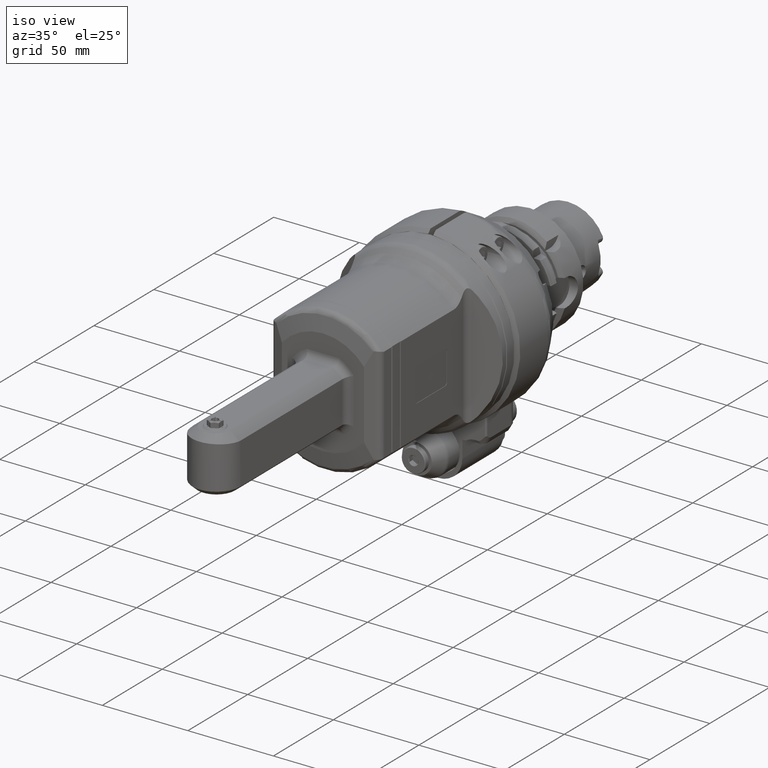
[diagram: clean part render]
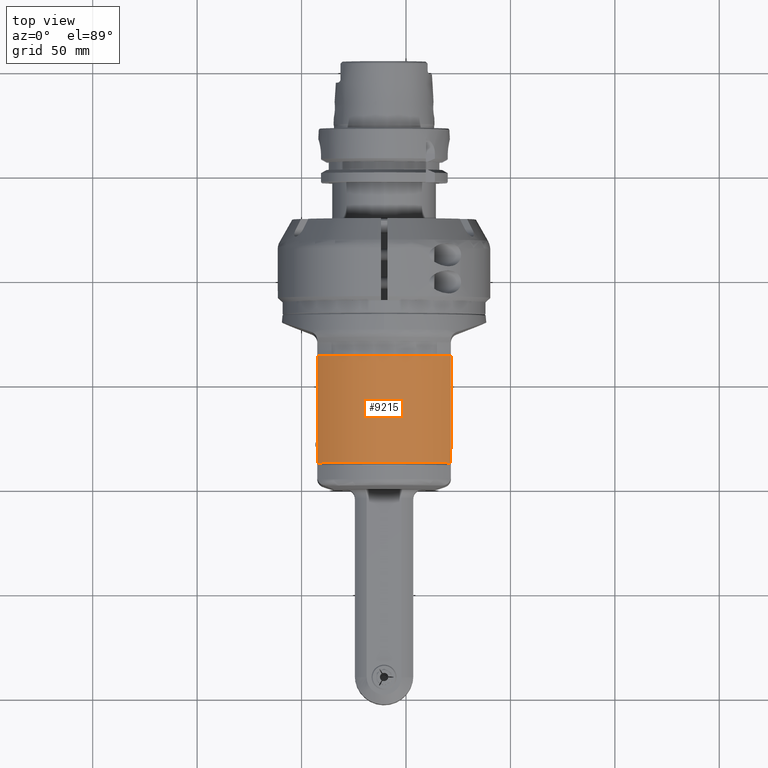
[diagram: tour spotlight — one face highlighted and labeled with its STEP entity id]
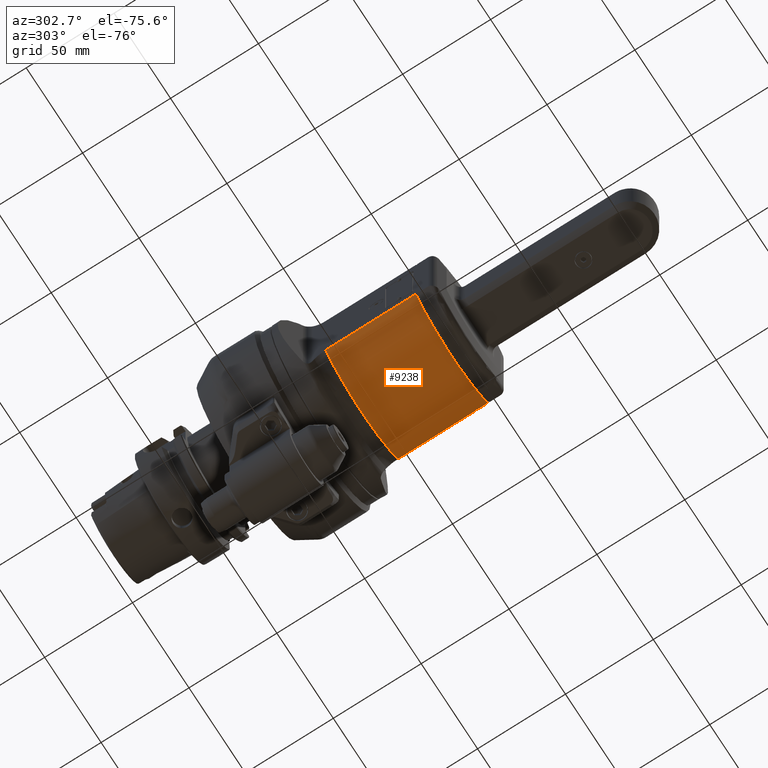
[diagram: tour spotlight — one face highlighted and labeled with its STEP entity id]
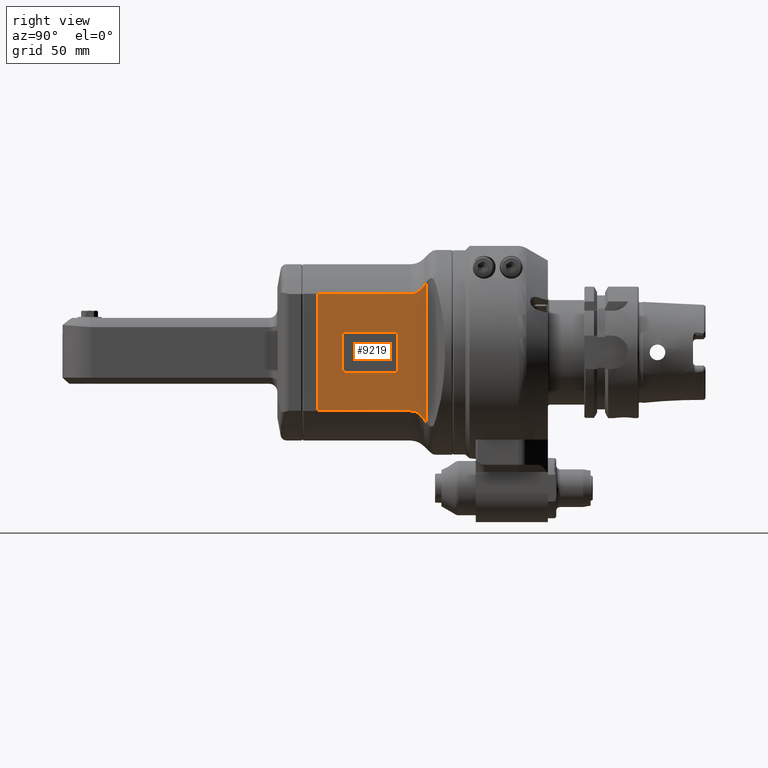
[diagram: tour spotlight — one face highlighted and labeled with its STEP entity id]
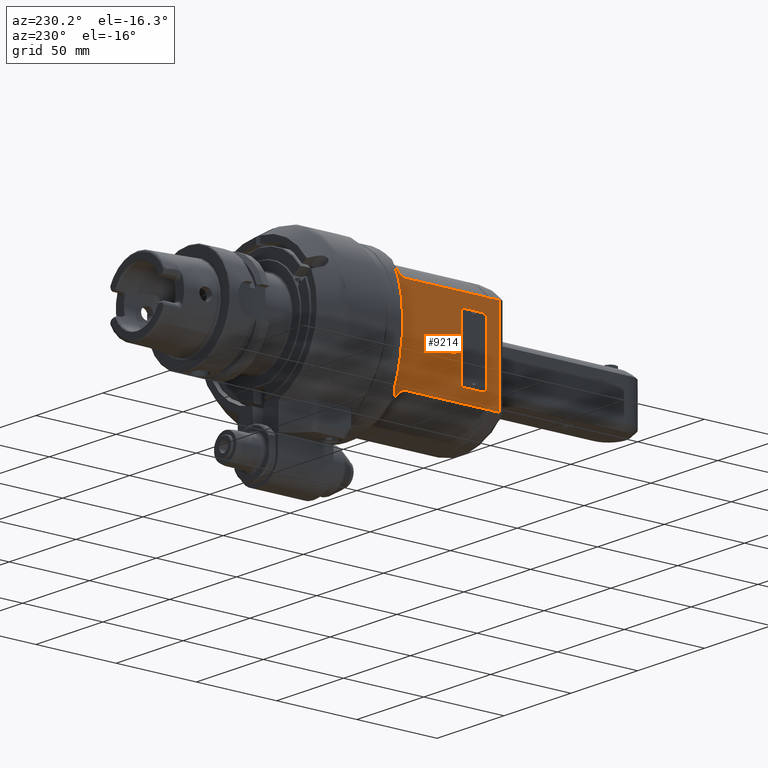
[diagram: tour spotlight — one face highlighted and labeled with its STEP entity id]
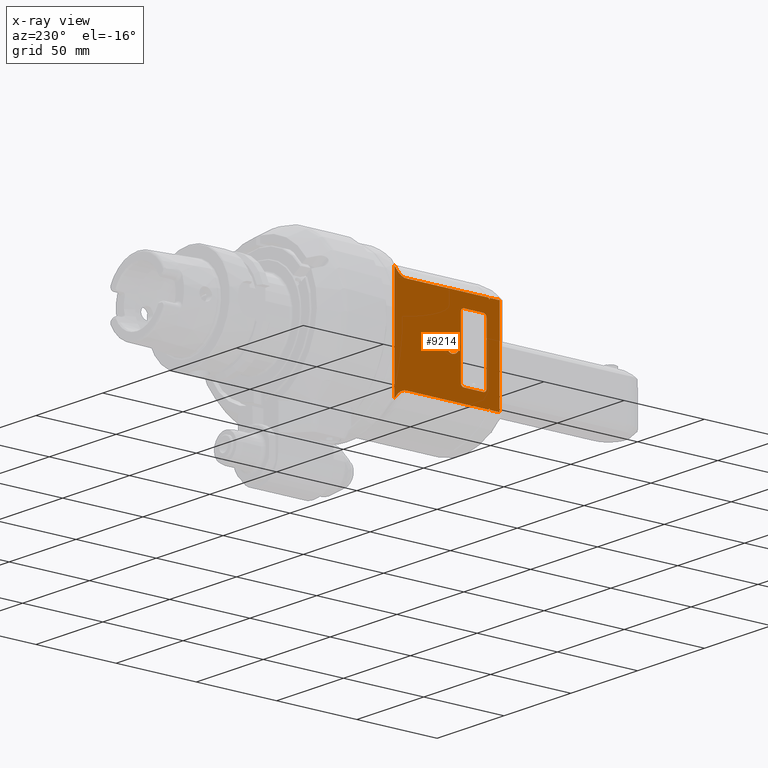
[diagram: x-ray of the same camera — body ghosted, this tour face saturated]
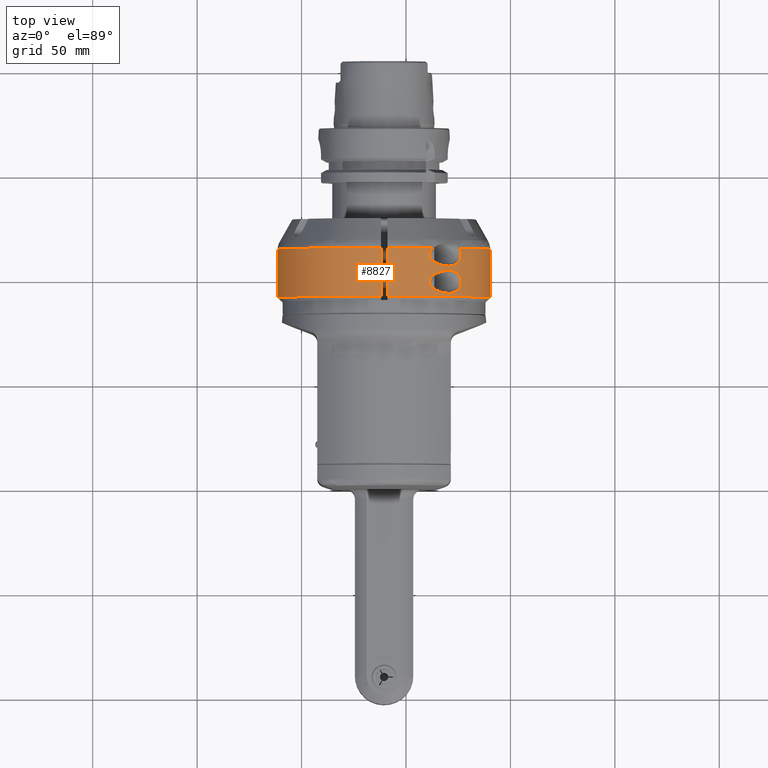
[diagram: tour spotlight — one face highlighted and labeled with its STEP entity id]
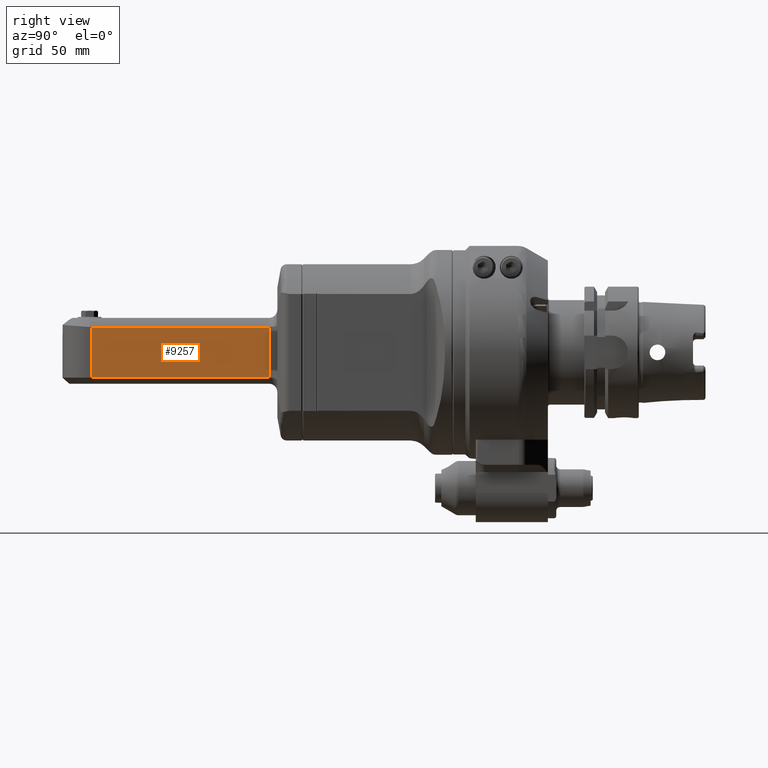
[diagram: tour spotlight — one face highlighted and labeled with its STEP entity id]
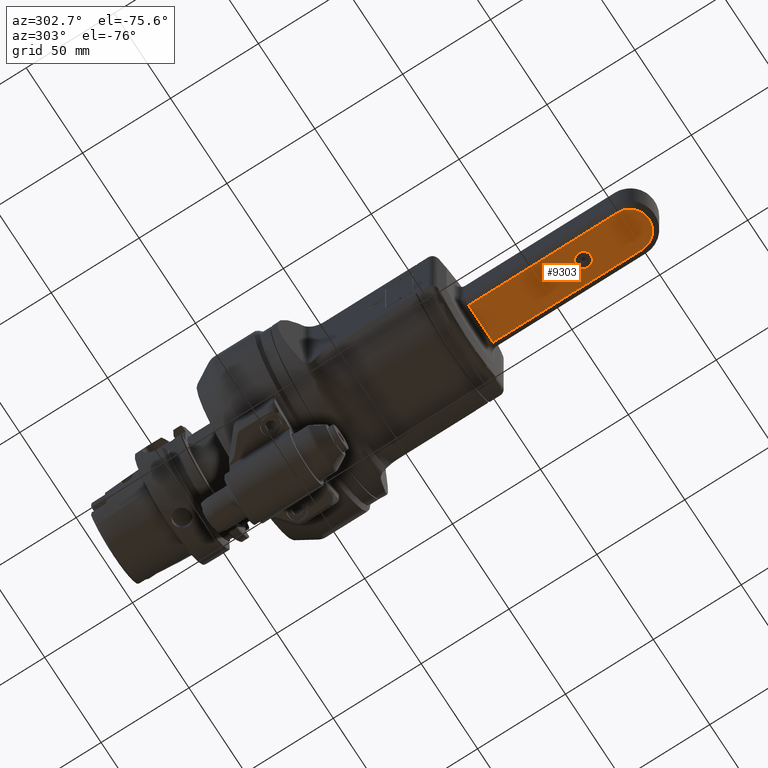
[diagram: tour spotlight — one face highlighted and labeled with its STEP entity id]
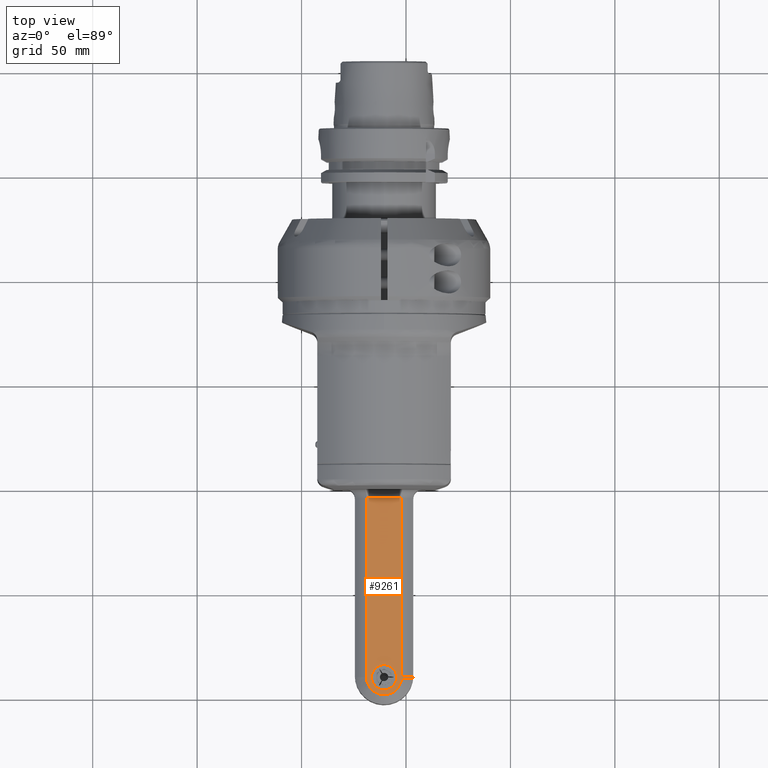
[diagram: tour spotlight — one face highlighted and labeled with its STEP entity id]
A machine part: a face-by-face anatomy tour. The part has 538 B-rep faces; the first image is the clean iso view, then the 8 largest visible faces are spotlighted one at a time (largest first), each with its STEP entity span.

Face 1 — top view, entity #9215. In plain terms, the highlighted cylindrical surface (partial cylindrical patch) has radius 42.5 mm, axis along (0, -1, -0).
Definition (entity closure, byte-faithful):
#1025=FACE_OUTER_BOUND('',#1614,.T.);
#1614=EDGE_LOOP('',(#7952,#7953,#7954,#7955,#7956,#7957,#7958));
#2086=CIRCLE('',#10130,51.9372405824031);
#2087=CIRCLE('',#10131,51.8413641374299);
#2088=CIRCLE('',#10132,42.5);
#2089=CIRCLE('',#10133,42.5);
#2820=LINE('',#46056,#3467);
#2830=LINE('',#46127,#3477);
#2831=LINE('',#46133,#3478);
#3467=VECTOR('',#12248,51.26935071414);
#3477=VECTOR('',#12276,6.3);
#3478=VECTOR('',#12281,44.46935112608);
#4316=VERTEX_POINT('',#46054);
#4317=VERTEX_POINT('',#46055);
#4338=VERTEX_POINT('',#46125);
#4339=VERTEX_POINT('',#46126);
#4340=VERTEX_POINT('',#46128);
#4341=VERTEX_POINT('',#46130);
#4342=VERTEX_POINT('',#46132);
#5560=EDGE_CURVE('',#4316,#4317,#2820,.T.);
#5582=EDGE_CURVE('',#4338,#4339,#2830,.T.);
#5583=EDGE_CURVE('',#4340,#4338,#2086,.T.);
#5584=EDGE_CURVE('',#4341,#4340,#2087,.T.);
#5585=EDGE_CURVE('',#4341,#4342,#2831,.T.);
#5586=EDGE_CURVE('',#4316,#4342,#2088,.T.);
#5587=EDGE_CURVE('',#4339,#4317,#2089,.T.);
#7952=ORIENTED_EDGE('',*,*,#5582,.F.);
#7953=ORIENTED_EDGE('',*,*,#5583,.F.);
#7954=ORIENTED_EDGE('',*,*,#5584,.F.);
#7955=ORIENTED_EDGE('',*,*,#5585,.T.);
#7956=ORIENTED_EDGE('',*,*,#5586,.F.);
#7957=ORIENTED_EDGE('',*,*,#5560,.T.);
#7958=ORIENTED_EDGE('',*,*,#5587,.F.);
#8780=CYLINDRICAL_SURFACE('',#10129,42.5);
#9215=ADVANCED_FACE('',(#1025),#8780,.T.);
#10129=AXIS2_PLACEMENT_3D('',#46124,#12274,#12275);
#10130=AXIS2_PLACEMENT_3D('',#46129,#12277,#12278);
#10131=AXIS2_PLACEMENT_3D('',#46131,#12279,#12280);
#10132=AXIS2_PLACEMENT_3D('',#46134,#12282,#12283);
#10133=AXIS2_PLACEMENT_3D('',#46135,#12284,#12285);
#12248=DIRECTION('',(1.,3.473462649786E-9,-3.035885710973E-9));
#12274=DIRECTION('center_axis',(1.,0.,0.));
#12275=DIRECTION('ref_axis',(0.,-1.,0.));
#12276=DIRECTION('',(1.,0.,0.));
#12277=DIRECTION('center_axis',(-0.707105409775689,-2.43192709413853E-6,
0.707108152590564));
#12278=DIRECTION('ref_axis',(0.442808617459183,-0.779644119090457,0.442804218443718));
#12279=DIRECTION('center_axis',(0.707103671027798,-5.49544179905175E-6,
0.707109891310263));
#12280=DIRECTION('ref_axis',(-0.438957611121359,-0.783990542192834,0.438947656777908));
#12281=DIRECTION('',(-1.,0.,0.));
#12282=DIRECTION('center_axis',(-1.,0.,0.));
#12283=DIRECTION('ref_axis',(0.,-0.658087824515174,-0.75294117647057));
#12284=DIRECTION('center_axis',(1.,0.,0.));
#12285=DIRECTION('ref_axis',(0.,-0.66077023316589,0.750588235294089));
#46054=CARTESIAN_POINT('',(17.23064887381,-27.96873254189,-32.));
#46055=CARTESIAN_POINT('',(68.4999999587753,-27.9687323282238,-32.0000002221198));
#46056=CARTESIAN_POINT('',(17.23064887381,-27.96873254189,-32.));
#46124=CARTESIAN_POINT('Origin',(22.25229287192,0.,0.));
#46125=CARTESIAN_POINT('',(62.2,-28.08273490955,31.9));
#46126=CARTESIAN_POINT('',(68.5,-28.08273490955,31.9));
#46127=CARTESIAN_POINT('',(62.2,-28.08273490955,31.9));
#46128=CARTESIAN_POINT('',(62.,-28.30830266901,31.7));
#46129=CARTESIAN_POINT('Origin',(39.2017423030611,12.4098292723073,8.90197077578513));
#46130=CARTESIAN_POINT('',(61.7,-27.96873254189,32.));
#46131=CARTESIAN_POINT('Origin',(84.7561613590387,12.334836509112,8.94435468770244));
#46132=CARTESIAN_POINT('',(17.23064887392,-27.96873254189,32.));
#46133=CARTESIAN_POINT('',(61.7,-27.96873254189,32.));
#46134=CARTESIAN_POINT('Origin',(17.23064887381,0.,0.));
#46135=CARTESIAN_POINT('Origin',(68.5,0.,0.));

Face 2 — auxiliary view, entity #9238. In plain terms, the highlighted cylindrical surface (partial cylindrical patch) has radius 42.5 mm, axis along (0, -1, -0).
Definition (entity closure, byte-faithful):
#1048=FACE_OUTER_BOUND('',#1639,.T.);
#1639=EDGE_LOOP('',(#8077,#8078,#8079,#8080,#8081,#8082,#8083));
#2090=CIRCLE('',#10136,51.9372405814551);
#2091=CIRCLE('',#10138,51.8413641367197);
#2112=CIRCLE('',#10181,42.5);
#2113=CIRCLE('',#10183,42.5);
#2822=LINE('',#46094,#3469);
#2833=LINE('',#46152,#3480);
#2837=LINE('',#46164,#3484);
#3469=VECTOR('',#12250,51.26935071414);
#3480=VECTOR('',#12289,6.3);
#3484=VECTOR('',#12303,44.46935112619);
#4322=VERTEX_POINT('',#46080);
#4323=VERTEX_POINT('',#46093);
#4345=VERTEX_POINT('',#46145);
#4346=VERTEX_POINT('',#46151);
#4347=VERTEX_POINT('',#46155);
#4348=VERTEX_POINT('',#46159);
#4349=VERTEX_POINT('',#46163);
#5566=EDGE_CURVE('',#4323,#4322,#2822,.T.);
#5591=EDGE_CURVE('',#4346,#4345,#2833,.T.);
#5593=EDGE_CURVE('',#4346,#4347,#2090,.T.);
#5595=EDGE_CURVE('',#4347,#4348,#2091,.T.);
#5597=EDGE_CURVE('',#4349,#4348,#2837,.T.);
#5649=EDGE_CURVE('',#4349,#4322,#2112,.T.);
#5650=EDGE_CURVE('',#4323,#4345,#2113,.T.);
#8077=ORIENTED_EDGE('',*,*,#5591,.T.);
#8078=ORIENTED_EDGE('',*,*,#5650,.F.);
#8079=ORIENTED_EDGE('',*,*,#5566,.T.);
#8080=ORIENTED_EDGE('',*,*,#5649,.F.);
#8081=ORIENTED_EDGE('',*,*,#5597,.T.);
#8082=ORIENTED_EDGE('',*,*,#5595,.F.);
#8083=ORIENTED_EDGE('',*,*,#5593,.F.);
#8786=CYLINDRICAL_SURFACE('',#10182,42.5);
#9238=ADVANCED_FACE('',(#1048),#8786,.T.);
#10136=AXIS2_PLACEMENT_3D('',#46156,#12293,#12294);
#10138=AXIS2_PLACEMENT_3D('',#46160,#12298,#12299);
#10181=AXIS2_PLACEMENT_3D('',#46375,#12399,#12400);
#10182=AXIS2_PLACEMENT_3D('',#46376,#12401,#12402);
#10183=AXIS2_PLACEMENT_3D('',#46377,#12403,#12404);
#12250=DIRECTION('',(-1.,3.473462719081E-9,3.035885849564E-9));
#12289=DIRECTION('',(1.,0.,0.));
#12293=DIRECTION('center_axis',(-0.707105409769089,2.43193874876257E-6,
0.707108152597164));
#12294=DIRECTION('ref_axis',(0.438957816045711,0.783987202337152,0.438953417009078));
#12298=DIRECTION('center_axis',(0.707103671021956,5.49545211017132E-6,0.707109891316105));
#12299=DIRECTION('ref_axis',(-0.444744495889397,0.77744036488246,0.444734541527318));
#12303=DIRECTION('',(1.,0.,0.));
#12399=DIRECTION('center_axis',(-1.,0.,0.));
#12400=DIRECTION('ref_axis',(0.,0.658087824515174,0.75294117647057));
#12401=DIRECTION('center_axis',(1.,0.,0.));
#12402=DIRECTION('ref_axis',(0.,1.,-3.61237605350076E-9));
#12403=DIRECTION('center_axis',(1.,0.,0.));
#12404=DIRECTION('ref_axis',(0.,0.658087824515174,-0.75294117647057));
#46080=CARTESIAN_POINT('',(17.23064887381,27.96873254189,-32.));
#46093=CARTESIAN_POINT('',(68.499999958775,27.9687323282249,-32.0000002221204));
#46094=CARTESIAN_POINT('',(68.49999958795,27.96873236381,-32.00000015565));
#46145=CARTESIAN_POINT('',(68.5,28.08273490955,31.9));
#46151=CARTESIAN_POINT('',(62.2,28.08273490955,31.9));
#46152=CARTESIAN_POINT('',(62.2,28.08273490955,31.9));
#46155=CARTESIAN_POINT('',(62.,28.30830266901,31.7));
#46156=CARTESIAN_POINT('Origin',(39.2017423029238,-12.4098292715587,8.90197077674531));
#46159=CARTESIAN_POINT('',(61.7,27.96873254189,32.));
#46160=CARTESIAN_POINT('Origin',(84.756161359204,-12.3348365085641,8.94435468850721));
#46163=CARTESIAN_POINT('',(17.23064887381,27.96873254189,32.));
#46164=CARTESIAN_POINT('',(17.23064887381,27.96873254189,32.));
#46375=CARTESIAN_POINT('Origin',(17.23064887381,0.,0.));
#46376=CARTESIAN_POINT('Origin',(22.25229287192,0.,0.));
#46377=CARTESIAN_POINT('Origin',(68.5,0.,0.));

Face 3 — right view, entity #9219. In plain terms, the highlighted planar face has unit normal (-1, -0, 0).
Definition (entity closure, byte-faithful):
#44=ELLIPSE('',#10140,174.936605021403,27.4118347394406);
#142=FACE_BOUND('',#1619,.T.);
#265=(
BOUNDED_CURVE()
B_SPLINE_CURVE(2,(#46179,#46180,#46181),.UNSPECIFIED.,.F.,.F.)
B_SPLINE_CURVE_WITH_KNOTS((3,3),(-0.358020175037099,-0.23112245109154),
 .UNSPECIFIED.)
CURVE()
GEOMETRIC_REPRESENTATION_ITEM()
RATIONAL_B_SPLINE_CURVE((1.04410882546459,1.03665734917675,1.02894673636987))
REPRESENTATION_ITEM('')
);
#479=PLANE('',#10139);
#1029=FACE_OUTER_BOUND('',#1618,.T.);
#1618=EDGE_LOOP('',(#7973,#7974,#7975,#7976,#7977,#7978,#7979,#7980));
#1619=EDGE_LOOP('',(#7981,#7982,#7983,#7984,#7985,#7986,#7987,#7988));
#2092=CIRCLE('',#10141,1.5);
#2093=CIRCLE('',#10142,1.5);
#2094=CIRCLE('',#10143,1.5);
#2095=CIRCLE('',#10144,1.5);
#2318=B_SPLINE_CURVE_WITH_KNOTS('',3,(#46166,#46167,#46168,#46169,#46170,
#46171,#46172,#46173,#46174,#46175,#46176,#46177),.UNSPECIFIED.,.F.,.F.,
(4,2,2,2,2,4),(3.0712756261057,3.21936466197179,3.36745369783788,3.55263373942636,
3.73781378101483,3.80386724461525),.UNSPECIFIED.);
#2319=B_SPLINE_CURVE_WITH_KNOTS('',3,(#46186,#46187,#46188,#46189,#46190,
#46191,#46192,#46193,#46194,#46195,#46196,#46197),.UNSPECIFIED.,.F.,.F.,
(4,2,2,2,2,4),(2.33868378422293,2.40473747119757,2.58991751278882,2.77509755438008,
2.92318659024839,3.0712756261167),.UNSPECIFIED.);
#2831=LINE('',#46133,#3478);
#2836=LINE('',#46161,#3483);
#2837=LINE('',#46164,#3484);
#2838=LINE('',#46183,#3485);
#2839=LINE('',#46200,#3486);
#2840=LINE('',#46204,#3487);
#2841=LINE('',#46208,#3488);
#2842=LINE('',#46212,#3489);
#3478=VECTOR('',#12281,44.46935112608);
#3483=VECTOR('',#12300,55.93746508379);
#3484=VECTOR('',#12303,44.46935112619);
#3485=VECTOR('',#12304,66.84160300858);
#3486=VECTOR('',#12307,16.5);
#3487=VECTOR('',#12310,23.5);
#3488=VECTOR('',#12313,16.5);
#3489=VECTOR('',#12316,23.5);
#4341=VERTEX_POINT('',#46130);
#4342=VERTEX_POINT('',#46132);
#4348=VERTEX_POINT('',#46159);
#4349=VERTEX_POINT('',#46163);
#4350=VERTEX_POINT('',#46165);
#4351=VERTEX_POINT('',#46178);
#4352=VERTEX_POINT('',#46182);
#4353=VERTEX_POINT('',#46184);
#4354=VERTEX_POINT('',#46198);
#4355=VERTEX_POINT('',#46199);
#4356=VERTEX_POINT('',#46201);
#4357=VERTEX_POINT('',#46203);
#4358=VERTEX_POINT('',#46205);
#4359=VERTEX_POINT('',#46207);
#4360=VERTEX_POINT('',#46209);
#4361=VERTEX_POINT('',#46211);
#5585=EDGE_CURVE('',#4341,#4342,#2831,.T.);
#5596=EDGE_CURVE('',#4341,#4348,#2836,.T.);
#5597=EDGE_CURVE('',#4349,#4348,#2837,.T.);
#5598=EDGE_CURVE('',#4349,#4350,#2318,.T.);
#5599=EDGE_CURVE('',#4350,#4351,#265,.T.);
#5600=EDGE_CURVE('',#4352,#4351,#2838,.T.);
#5601=EDGE_CURVE('',#4353,#4352,#44,.T.);
#5602=EDGE_CURVE('',#4353,#4342,#2319,.T.);
#5603=EDGE_CURVE('',#4354,#4355,#2839,.T.);
#5604=EDGE_CURVE('',#4354,#4356,#2092,.T.);
#5605=EDGE_CURVE('',#4357,#4356,#2840,.T.);
#5606=EDGE_CURVE('',#4357,#4358,#2093,.T.);
#5607=EDGE_CURVE('',#4359,#4358,#2841,.T.);
#5608=EDGE_CURVE('',#4359,#4360,#2094,.T.);
#5609=EDGE_CURVE('',#4361,#4360,#2842,.T.);
#5610=EDGE_CURVE('',#4361,#4355,#2095,.T.);
#7973=ORIENTED_EDGE('',*,*,#5585,.F.);
#7974=ORIENTED_EDGE('',*,*,#5596,.T.);
#7975=ORIENTED_EDGE('',*,*,#5597,.F.);
#7976=ORIENTED_EDGE('',*,*,#5598,.T.);
#7977=ORIENTED_EDGE('',*,*,#5599,.T.);
#7978=ORIENTED_EDGE('',*,*,#5600,.F.);
#7979=ORIENTED_EDGE('',*,*,#5601,.F.);
#7980=ORIENTED_EDGE('',*,*,#5602,.T.);
#7981=ORIENTED_EDGE('',*,*,#5603,.F.);
#7982=ORIENTED_EDGE('',*,*,#5604,.T.);
#7983=ORIENTED_EDGE('',*,*,#5605,.F.);
#7984=ORIENTED_EDGE('',*,*,#5606,.T.);
#7985=ORIENTED_EDGE('',*,*,#5607,.F.);
#7986=ORIENTED_EDGE('',*,*,#5608,.T.);
#7987=ORIENTED_EDGE('',*,*,#5609,.F.);
#7988=ORIENTED_EDGE('',*,*,#5610,.T.);
#9219=ADVANCED_FACE('',(#1029,#142),#479,.F.);
#10139=AXIS2_PLACEMENT_3D('',#46162,#12301,#12302);
#10140=AXIS2_PLACEMENT_3D('',#46185,#12305,#12306);
#10141=AXIS2_PLACEMENT_3D('',#46202,#12308,#12309);
#10142=AXIS2_PLACEMENT_3D('',#46206,#12311,#12312);
#10143=AXIS2_PLACEMENT_3D('',#46210,#12314,#12315);
#10144=AXIS2_PLACEMENT_3D('',#46213,#12317,#12318);
#12281=DIRECTION('',(-1.,0.,0.));
#12300=DIRECTION('',(0.,1.,0.));
#12301=DIRECTION('center_axis',(0.,0.,-1.));
#12302=DIRECTION('ref_axis',(1.,0.,0.));
#12303=DIRECTION('',(1.,0.,0.));
#12304=DIRECTION('',(-1.533572553029E-12,1.,3.374146633328E-12));
#12305=DIRECTION('center_axis',(0.000114920305094293,-8.4270334005718E-5,
-0.999999989845917));
#12306=DIRECTION('ref_axis',(0.765749355041379,0.643139117229777,3.38026016292521E-5));
#12307=DIRECTION('',(0.,1.,0.));
#12308=DIRECTION('center_axis',(0.,0.,-1.));
#12309=DIRECTION('ref_axis',(1.,-1.657933050107E-14,0.));
#12310=DIRECTION('',(1.,0.,0.));
#12311=DIRECTION('center_axis',(0.,0.,-1.));
#12312=DIRECTION('ref_axis',(0.,-1.,0.));
#12313=DIRECTION('',(0.,-1.,0.));
#12314=DIRECTION('center_axis',(0.,0.,-1.));
#12315=DIRECTION('ref_axis',(-1.,0.,0.));
#12316=DIRECTION('',(-1.,0.,0.));
#12317=DIRECTION('center_axis',(0.,0.,-1.));
#12318=DIRECTION('ref_axis',(0.,1.,0.));
#46130=CARTESIAN_POINT('',(61.7,-27.96873254189,32.));
#46132=CARTESIAN_POINT('',(17.23064887392,-27.96873254189,32.));
#46133=CARTESIAN_POINT('',(61.7,-27.96873254189,32.));
#46159=CARTESIAN_POINT('',(61.7,27.96873254189,32.));
#46161=CARTESIAN_POINT('',(61.7,-27.96873254189,32.));
#46162=CARTESIAN_POINT('Origin',(6.930692048084,-58.8000024,32.));
#46163=CARTESIAN_POINT('',(17.23064887381,27.96873254189,32.));
#46164=CARTESIAN_POINT('',(17.23064887381,27.96873254189,32.));
#46165=CARTESIAN_POINT('',(10.8689325306567,31.8285948719383,32.0000000967632));
#46166=CARTESIAN_POINT('Ctrl Pts',(17.23064887381,27.968732541894,32.));
#46167=CARTESIAN_POINT('Ctrl Pts',(16.7370187542564,27.968732541894,32.));
#46168=CARTESIAN_POINT('Ctrl Pts',(16.2014291398538,28.0351278054541,32.));
#46169=CARTESIAN_POINT('Ctrl Pts',(15.1655978291161,28.3086723916246,32.));
#46170=CARTESIAN_POINT('Ctrl Pts',(14.6650966137489,28.5148380476213,32.));
#46171=CARTESIAN_POINT('Ctrl Pts',(13.6833023503026,29.0346187724486,32.));
#46172=CARTESIAN_POINT('Ctrl Pts',(13.1290095618823,29.419596467791,32.));
#46173=CARTESIAN_POINT('Ctrl Pts',(12.1164800137392,30.3041616581605,32.));
#46174=CARTESIAN_POINT('Ctrl Pts',(11.6572714347099,30.8026361299901,32.));
#46175=CARTESIAN_POINT('Ctrl Pts',(11.1373983141086,31.4591771382071,32.));
#46176=CARTESIAN_POINT('Ctrl Pts',(11.0017952306107,31.6403249619752,32.));
#46177=CARTESIAN_POINT('Ctrl Pts',(10.8689325764876,31.8285949042813,32.));
#46178=CARTESIAN_POINT('',(9.73152223550858,33.420805285391,32.0000001608818));
#46179=CARTESIAN_POINT('Ctrl Pts',(10.8689325764839,31.8285949042871,32.));
#46180=CARTESIAN_POINT('Ctrl Pts',(10.3141049488347,32.614800585509,32.));
#46181=CARTESIAN_POINT('Ctrl Pts',(9.73152233076506,33.4208053542428,32.));
#46182=CARTESIAN_POINT('',(9.7315230167701,-33.4208029933432,32.0000006440383));
#46183=CARTESIAN_POINT('',(9.731521981753,-33.42080150517,32.00000048242));
#46184=CARTESIAN_POINT('',(10.8689317072229,-31.8285971521966,31.9999989892967));
#46185=CARTESIAN_POINT('Origin',(-113.280725385183,-117.803473850044,31.9929758003627));
#46186=CARTESIAN_POINT('Ctrl Pts',(10.8689312285262,-31.8285968143791,32.));
#46187=CARTESIAN_POINT('Ctrl Pts',(11.0017943136203,-31.6403261873273,32.));
#46188=CARTESIAN_POINT('Ctrl Pts',(11.1373978518862,-31.4591777219417,32.));
#46189=CARTESIAN_POINT('Ctrl Pts',(11.6572714347099,-30.8026361299901,32.));
#46190=CARTESIAN_POINT('Ctrl Pts',(12.1164800137392,-30.3041616581605,32.));
#46191=CARTESIAN_POINT('Ctrl Pts',(13.1290095618823,-29.419596467791,32.));
#46192=CARTESIAN_POINT('Ctrl Pts',(13.6833023503026,-29.0346187724486,32.));
#46193=CARTESIAN_POINT('Ctrl Pts',(14.6650966137489,-28.5148380476213,32.));
#46194=CARTESIAN_POINT('Ctrl Pts',(15.1655978291161,-28.3086723916246,32.));
#46195=CARTESIAN_POINT('Ctrl Pts',(16.2014291398538,-28.0351278054541,32.));
#46196=CARTESIAN_POINT('Ctrl Pts',(16.7370187542564,-27.968732541894,32.));
#46197=CARTESIAN_POINT('Ctrl Pts',(17.23064887381,-27.968732541894,32.));
#46198=CARTESIAN_POINT('',(49.7,-8.25,32.));
#46199=CARTESIAN_POINT('',(49.7,8.25,32.));
#46200=CARTESIAN_POINT('',(49.7,-8.25,32.));
#46201=CARTESIAN_POINT('',(48.2,-9.75,32.));
#46202=CARTESIAN_POINT('Origin',(48.2,-8.25,32.));
#46203=CARTESIAN_POINT('',(24.7,-9.75,32.));
#46204=CARTESIAN_POINT('',(24.7,-9.75,32.));
#46205=CARTESIAN_POINT('',(23.2,-8.25,32.));
#46206=CARTESIAN_POINT('Origin',(24.7,-8.25,32.));
#46207=CARTESIAN_POINT('',(23.2,8.25,32.));
#46208=CARTESIAN_POINT('',(23.2,8.25,32.));
#46209=CARTESIAN_POINT('',(24.7,9.75,32.));
#46210=CARTESIAN_POINT('Origin',(24.7,8.25,32.));
#46211=CARTESIAN_POINT('',(48.2,9.75,32.));
#46212=CARTESIAN_POINT('',(48.2,9.75,32.));
#46213=CARTESIAN_POINT('Origin',(48.2,8.25,32.));

Face 4 — auxiliary view, entity #9214. An x-ray twin of the same camera follows (body ghosted, this face saturated) — the face is partly hidden behind the body. In plain terms, the highlighted planar face has unit normal (1, 0, -0).
Definition (entity closure, byte-faithful):
#140=FACE_BOUND('',#1612,.T.);
#141=FACE_BOUND('',#1613,.T.);
#263=(
BOUNDED_CURVE()
B_SPLINE_CURVE(2,(#46071,#46072,#46073),.UNSPECIFIED.,.F.,.F.)
B_SPLINE_CURVE_WITH_KNOTS((3,3),(-0.358020174879983,-0.231122492491421),
 .UNSPECIFIED.)
CURVE()
GEOMETRIC_REPRESENTATION_ITEM()
RATIONAL_B_SPLINE_CURVE((1.04410882544479,1.03665735159712,1.02894674140012))
REPRESENTATION_ITEM('')
);
#264=(
BOUNDED_CURVE()
B_SPLINE_CURVE(2,(#46077,#46078,#46079),.UNSPECIFIED.,.F.,.F.)
B_SPLINE_CURVE_WITH_KNOTS((3,3),(-7.78281156866565,-7.65591384490931),
 .UNSPECIFIED.)
CURVE()
GEOMETRIC_REPRESENTATION_ITEM()
RATIONAL_B_SPLINE_CURVE((1.02894673636928,1.03665734916468,1.0441088254418))
REPRESENTATION_ITEM('')
);
#475=PLANE('',#10120);
#1024=FACE_OUTER_BOUND('',#1611,.T.);
#1611=EDGE_LOOP('',(#7929,#7930,#7931,#7932,#7933,#7934,#7935,#7936,#7937,
#7938,#7939,#7940,#7941,#7942));
#1612=EDGE_LOOP('',(#7943));
#1613=EDGE_LOOP('',(#7944,#7945,#7946,#7947,#7948,#7949,#7950,#7951));
#2077=CIRCLE('',#10119,4.25);
#2078=CIRCLE('',#10121,125.457615877883);
#2079=CIRCLE('',#10122,125.457615683286);
#2080=CIRCLE('',#10123,125.457615844418);
#2081=CIRCLE('',#10124,125.457615773341);
#2082=CIRCLE('',#10125,2.);
#2083=CIRCLE('',#10126,2.);
#2084=CIRCLE('',#10127,2.);
#2085=CIRCLE('',#10128,2.);
#2314=B_SPLINE_CURVE_WITH_KNOTS('',3,(#46058,#46059,#46060,#46061,#46062,
#46063,#46064,#46065,#46066,#46067,#46068,#46069),.UNSPECIFIED.,.F.,.F.,
(4,2,2,2,2,4),(-3.80386724463457,-3.73781378101483,-3.55263373942636,-3.36745369783788,
-3.21936466197179,-3.0712756261057),.UNSPECIFIED.);
#2315=B_SPLINE_CURVE_WITH_KNOTS('',3,(#46081,#46082,#46083,#46084,#46085,
#46086,#46087,#46088,#46089,#46090,#46091,#46092),.UNSPECIFIED.,.F.,.F.,
(4,2,2,2,2,4),(-3.0712756261057,-2.92318659023961,-2.77509755437353,-2.58991751278505,
-2.40473747119658,-2.33868400731691),.UNSPECIFIED.);
#2820=LINE('',#46056,#3467);
#2821=LINE('',#46075,#3468);
#2822=LINE('',#46094,#3469);
#2823=LINE('',#46100,#3470);
#2824=LINE('',#46102,#3471);
#2825=LINE('',#46104,#3472);
#2826=LINE('',#46110,#3473);
#2827=LINE('',#46114,#3474);
#2828=LINE('',#46118,#3475);
#2829=LINE('',#46122,#3476);
#3467=VECTOR('',#12248,51.26935071414);
#3468=VECTOR('',#12249,66.8416030065);
#3469=VECTOR('',#12250,51.26935071414);
#3470=VECTOR('',#12255,5.79108067422501);
#3471=VECTOR('',#12256,55.93746508379);
#3472=VECTOR('',#12257,5.79108067422501);
#3473=VECTOR('',#12262,35.5);
#3474=VECTOR('',#12265,12.);
#3475=VECTOR('',#12268,35.5);
#3476=VECTOR('',#12271,12.);
#4315=VERTEX_POINT('',#46050);
#4316=VERTEX_POINT('',#46054);
#4317=VERTEX_POINT('',#46055);
#4318=VERTEX_POINT('',#46057);
#4319=VERTEX_POINT('',#46070);
#4320=VERTEX_POINT('',#46074);
#4321=VERTEX_POINT('',#46076);
#4322=VERTEX_POINT('',#46080);
#4323=VERTEX_POINT('',#46093);
#4324=VERTEX_POINT('',#46095);
#4325=VERTEX_POINT('',#46097);
#4326=VERTEX_POINT('',#46099);
#4327=VERTEX_POINT('',#46101);
#4328=VERTEX_POINT('',#46103);
#4329=VERTEX_POINT('',#46105);
#4330=VERTEX_POINT('',#46108);
#4331=VERTEX_POINT('',#46109);
#4332=VERTEX_POINT('',#46111);
#4333=VERTEX_POINT('',#46113);
#4334=VERTEX_POINT('',#46115);
#4335=VERTEX_POINT('',#46117);
#4336=VERTEX_POINT('',#46119);
#4337=VERTEX_POINT('',#46121);
#5559=EDGE_CURVE('',#4315,#4315,#2077,.T.);
#5560=EDGE_CURVE('',#4316,#4317,#2820,.T.);
#5561=EDGE_CURVE('',#4318,#4316,#2314,.T.);
#5562=EDGE_CURVE('',#4318,#4319,#263,.T.);
#5563=EDGE_CURVE('',#4320,#4319,#2821,.T.);
#5564=EDGE_CURVE('',#4320,#4321,#264,.T.);
#5565=EDGE_CURVE('',#4322,#4321,#2315,.T.);
#5566=EDGE_CURVE('',#4323,#4322,#2822,.T.);
#5567=EDGE_CURVE('',#4323,#4324,#2078,.T.);
#5568=EDGE_CURVE('',#4324,#4325,#2079,.T.);
#5569=EDGE_CURVE('',#4326,#4325,#2823,.T.);
#5570=EDGE_CURVE('',#4327,#4326,#2824,.T.);
#5571=EDGE_CURVE('',#4328,#4327,#2825,.T.);
#5572=EDGE_CURVE('',#4328,#4329,#2080,.T.);
#5573=EDGE_CURVE('',#4329,#4317,#2081,.T.);
#5574=EDGE_CURVE('',#4330,#4331,#2826,.T.);
#5575=EDGE_CURVE('',#4331,#4332,#2082,.T.);
#5576=EDGE_CURVE('',#4332,#4333,#2827,.T.);
#5577=EDGE_CURVE('',#4333,#4334,#2083,.T.);
#5578=EDGE_CURVE('',#4334,#4335,#2828,.T.);
#5579=EDGE_CURVE('',#4335,#4336,#2084,.T.);
#5580=EDGE_CURVE('',#4336,#4337,#2829,.T.);
#5581=EDGE_CURVE('',#4337,#4330,#2085,.T.);
#7929=ORIENTED_EDGE('',*,*,#5560,.F.);
#7930=ORIENTED_EDGE('',*,*,#5561,.F.);
#7931=ORIENTED_EDGE('',*,*,#5562,.T.);
#7932=ORIENTED_EDGE('',*,*,#5563,.F.);
#7933=ORIENTED_EDGE('',*,*,#5564,.T.);
#7934=ORIENTED_EDGE('',*,*,#5565,.F.);
#7935=ORIENTED_EDGE('',*,*,#5566,.F.);
#7936=ORIENTED_EDGE('',*,*,#5567,.T.);
#7937=ORIENTED_EDGE('',*,*,#5568,.T.);
#7938=ORIENTED_EDGE('',*,*,#5569,.F.);
#7939=ORIENTED_EDGE('',*,*,#5570,.F.);
#7940=ORIENTED_EDGE('',*,*,#5571,.F.);
#7941=ORIENTED_EDGE('',*,*,#5572,.T.);
#7942=ORIENTED_EDGE('',*,*,#5573,.T.);
#7943=ORIENTED_EDGE('',*,*,#5559,.T.);
#7944=ORIENTED_EDGE('',*,*,#5574,.T.);
#7945=ORIENTED_EDGE('',*,*,#5575,.T.);
#7946=ORIENTED_EDGE('',*,*,#5576,.T.);
#7947=ORIENTED_EDGE('',*,*,#5577,.T.);
#7948=ORIENTED_EDGE('',*,*,#5578,.T.);
#7949=ORIENTED_EDGE('',*,*,#5579,.T.);
#7950=ORIENTED_EDGE('',*,*,#5580,.T.);
#7951=ORIENTED_EDGE('',*,*,#5581,.T.);
#9214=ADVANCED_FACE('',(#1024,#140,#141),#475,.F.);
#10119=AXIS2_PLACEMENT_3D('',#46052,#12244,#12245);
#10120=AXIS2_PLACEMENT_3D('',#46053,#12246,#12247);
#10121=AXIS2_PLACEMENT_3D('',#46096,#12251,#12252);
#10122=AXIS2_PLACEMENT_3D('',#46098,#12253,#12254);
#10123=AXIS2_PLACEMENT_3D('',#46106,#12258,#12259);
#10124=AXIS2_PLACEMENT_3D('',#46107,#12260,#12261);
#10125=AXIS2_PLACEMENT_3D('',#46112,#12263,#12264);
#10126=AXIS2_PLACEMENT_3D('',#46116,#12266,#12267);
#10127=AXIS2_PLACEMENT_3D('',#46120,#12269,#12270);
#10128=AXIS2_PLACEMENT_3D('',#46123,#12272,#12273);
#12244=DIRECTION('center_axis',(0.,0.,1.));
#12245=DIRECTION('ref_axis',(-1.,0.,0.));
#12246=DIRECTION('center_axis',(0.,0.,1.));
#12247=DIRECTION('ref_axis',(1.,0.,0.));
#12248=DIRECTION('',(1.,3.473462649786E-9,-3.035885710973E-9));
#12249=DIRECTION('',(4.41420997931E-13,-1.,1.593473993735E-13));
#12250=DIRECTION('',(-1.,3.473462719081E-9,3.035885849564E-9));
#12251=DIRECTION('center_axis',(-0.000101433758070783,-6.72495559794746E-5,
-0.999999992594345));
#12252=DIRECTION('ref_axis',(0.839311775708216,0.543650373261988,-0.000121694794714337));
#12253=DIRECTION('center_axis',(0.000101431716550913,-6.72482230361314E-5,
-0.999999992594642));
#12254=DIRECTION('ref_axis',(-0.835326366002053,0.549754351916615,-0.000121698591357801));
#12255=DIRECTION('',(-0.999999999999999,-3.075111336812E-8,-2.687717509043E-8));
#12256=DIRECTION('',(0.,1.,0.));
#12257=DIRECTION('',(0.999999999999999,-3.075112502425E-8,2.687718367915E-8));
#12258=DIRECTION('center_axis',(0.000101433409963309,6.72493286931444E-5,
-0.999999992594396));
#12259=DIRECTION('ref_axis',(-0.839311775708652,-0.543650373261407,-0.000121694378979329));
#12260=DIRECTION('center_axis',(-0.000101432662574599,6.72488407139107E-5,
-0.999999992594504));
#12261=DIRECTION('ref_axis',(0.835326366003244,-0.549754351914555,-0.000121699721167393));
#12262=DIRECTION('',(0.,-1.,0.));
#12263=DIRECTION('center_axis',(0.,0.,1.));
#12264=DIRECTION('ref_axis',(-1.,0.,0.));
#12265=DIRECTION('',(1.,0.,0.));
#12266=DIRECTION('center_axis',(0.,0.,1.));
#12267=DIRECTION('ref_axis',(0.,-1.,0.));
#12268=DIRECTION('',(0.,1.,0.));
#12269=DIRECTION('center_axis',(0.,0.,1.));
#12270=DIRECTION('ref_axis',(1.,0.,0.));
#12271=DIRECTION('',(-1.,0.,0.));
#12272=DIRECTION('center_axis',(0.,0.,1.));
#12273=DIRECTION('ref_axis',(0.,1.,0.));
#46050=CARTESIAN_POINT('',(50.25,0.,-32.));
#46052=CARTESIAN_POINT('Origin',(46.,0.,-32.));
#46053=CARTESIAN_POINT('Origin',(18.93069204808,58.8000024,-32.));
#46054=CARTESIAN_POINT('',(17.23064887381,-27.96873254189,-32.));
#46055=CARTESIAN_POINT('',(68.4999999587753,-27.9687323282238,-32.0000002221198));
#46056=CARTESIAN_POINT('',(17.23064887381,-27.96873254189,-32.));
#46057=CARTESIAN_POINT('',(10.8689325305619,-31.8285948721189,-32.0000000967171));
#46058=CARTESIAN_POINT('Ctrl Pts',(10.8689325763711,-31.8285949044465,-32.));
#46059=CARTESIAN_POINT('Ctrl Pts',(11.0017952305313,-31.6403249620812,-32.));
#46060=CARTESIAN_POINT('Ctrl Pts',(11.1373983140686,-31.4591771382575,-32.));
#46061=CARTESIAN_POINT('Ctrl Pts',(11.6572714347099,-30.8026361299901,-32.));
#46062=CARTESIAN_POINT('Ctrl Pts',(12.1164800137392,-30.3041616581605,-32.));
#46063=CARTESIAN_POINT('Ctrl Pts',(13.1290095618823,-29.419596467791,-32.));
#46064=CARTESIAN_POINT('Ctrl Pts',(13.6833023503026,-29.0346187724486,-32.));
#46065=CARTESIAN_POINT('Ctrl Pts',(14.6650966137489,-28.5148380476213,-32.));
#46066=CARTESIAN_POINT('Ctrl Pts',(15.1655978291161,-28.3086723916246,-32.));
#46067=CARTESIAN_POINT('Ctrl Pts',(16.2014291398538,-28.0351278054541,-32.));
#46068=CARTESIAN_POINT('Ctrl Pts',(16.7370187542564,-27.968732541894,-32.));
#46069=CARTESIAN_POINT('Ctrl Pts',(17.23064887381,-27.968732541894,-32.));
#46070=CARTESIAN_POINT('',(9.73152227520835,-33.4208045046727,-32.0000006443608));
#46071=CARTESIAN_POINT('Ctrl Pts',(10.8689325763673,-31.8285949044523,-32.));
#46072=CARTESIAN_POINT('Ctrl Pts',(10.3141051317047,-32.6148003263752,-32.));
#46073=CARTESIAN_POINT('Ctrl Pts',(9.73152271504614,-33.4208048225888,-32.));
#46074=CARTESIAN_POINT('',(9.73152223545386,33.4208052854463,-32.0000001608933));
#46075=CARTESIAN_POINT('',(9.73152198157,33.42080150323,-32.00000048268));
#46076=CARTESIAN_POINT('',(10.8689325292865,31.8285948745484,-32.0000000960981));
#46077=CARTESIAN_POINT('Ctrl Pts',(9.73152233072003,33.4208053543051,-32.));
#46078=CARTESIAN_POINT('Ctrl Pts',(10.3141049479289,32.6148005867629,-32.));
#46079=CARTESIAN_POINT('Ctrl Pts',(10.8689325747988,31.8285949066749,-32.));
#46080=CARTESIAN_POINT('',(17.23064887381,27.96873254189,-32.));
#46081=CARTESIAN_POINT('Ctrl Pts',(17.23064887381,27.968732541894,-32.));
#46082=CARTESIAN_POINT('Ctrl Pts',(16.7370187542564,27.968732541894,-32.));
#46083=CARTESIAN_POINT('Ctrl Pts',(16.2014291398538,28.0351278054541,-32.));
#46084=CARTESIAN_POINT('Ctrl Pts',(15.1655978291161,28.3086723916246,-32.));
#46085=CARTESIAN_POINT('Ctrl Pts',(14.6650966137489,28.5148380476213,-32.));
#46086=CARTESIAN_POINT('Ctrl Pts',(13.6833023503026,29.0346187724486,-32.));
#46087=CARTESIAN_POINT('Ctrl Pts',(13.1290095618823,29.419596467791,-32.));
#46088=CARTESIAN_POINT('Ctrl Pts',(12.1164800137392,30.3041616581605,-32.));
#46089=CARTESIAN_POINT('Ctrl Pts',(11.6572714347099,30.8026361299901,-32.));
#46090=CARTESIAN_POINT('Ctrl Pts',(11.1373983135307,31.4591771389368,-32.));
#46091=CARTESIAN_POINT('Ctrl Pts',(11.0017952294643,31.6403249635071,-32.));
#46092=CARTESIAN_POINT('Ctrl Pts',(10.8689325748025,31.8285949066692,-32.));
#46093=CARTESIAN_POINT('',(68.499999958775,27.9687323282249,-32.0000002221204));
#46094=CARTESIAN_POINT('',(68.49999958795,27.96873236381,-32.00000015565));
#46095=CARTESIAN_POINT('',(69.,27.202941575184,-31.9999995276666));
#46096=CARTESIAN_POINT('Origin',(-36.2980545649426,-41.0021378099356,-31.9847319897655));
#46097=CARTESIAN_POINT('',(69.5000000412247,27.9687323282238,-32.0000002221198));
#46098=CARTESIAN_POINT('Origin',(174.298054402027,-41.0021377035762,-31.9847322956708));
#46099=CARTESIAN_POINT('',(75.29108108628,27.96873254189,-32.));
#46100=CARTESIAN_POINT('',(75.29108108628,27.96873254189,-32.));
#46101=CARTESIAN_POINT('',(75.29108108628,-27.96873254189,-32.));
#46102=CARTESIAN_POINT('',(75.29108108628,-27.96873254189,-32.));
#46103=CARTESIAN_POINT('',(69.5000000412251,-27.9687323282249,-32.0000002221204));
#46104=CARTESIAN_POINT('',(69.50000041205,-27.96873236381,-32.00000015565));
#46105=CARTESIAN_POINT('',(69.0000000000001,-27.2029415751841,-31.9999995276666));
#46106=CARTESIAN_POINT('Origin',(174.29805453691,41.0021377916699,-31.9847320419267));
#46107=CARTESIAN_POINT('Origin',(-36.2980544774016,41.0021377528261,-31.9847321539166));
#46108=CARTESIAN_POINT('',(51.25,17.75,-32.));
#46109=CARTESIAN_POINT('',(51.25,-17.75,-32.));
#46110=CARTESIAN_POINT('',(51.25,17.75,-32.));
#46111=CARTESIAN_POINT('',(53.25,-19.75,-32.));
#46112=CARTESIAN_POINT('Origin',(53.25,-17.75,-32.));
#46113=CARTESIAN_POINT('',(65.25,-19.75,-32.));
#46114=CARTESIAN_POINT('',(53.25,-19.75,-32.));
#46115=CARTESIAN_POINT('',(67.25,-17.75,-32.));
#46116=CARTESIAN_POINT('Origin',(65.25,-17.75,-32.));
#46117=CARTESIAN_POINT('',(67.25,17.75,-32.));
#46118=CARTESIAN_POINT('',(67.25,-17.75,-32.));
#46119=CARTESIAN_POINT('',(65.25,19.75,-32.));
#46120=CARTESIAN_POINT('Origin',(65.25,17.75,-32.));
#46121=CARTESIAN_POINT('',(53.25,19.75,-32.));
#46122=CARTESIAN_POINT('',(65.25,19.75,-32.));
#46123=CARTESIAN_POINT('Origin',(53.25,17.75,-32.));

Face 5 — top view, entity #8827. In plain terms, the highlighted cylindrical surface (partial cylindrical patch) has radius 51 mm, axis along (0, -1, 0).
Definition (entity closure, byte-faithful):
#93=FACE_BOUND('',#1178,.T.);
#637=FACE_OUTER_BOUND('',#1177,.T.);
#1177=EDGE_LOOP('',(#5963,#5964,#5965,#5966,#5967,#5968,#5969,#5970,#5971,
#5972,#5973));
#1178=EDGE_LOOP('',(#5974,#5975));
#1778=CIRCLE('',#9431,51.);
#1779=CIRCLE('',#9432,51.);
#1780=CIRCLE('',#9433,51.);
#1781=CIRCLE('',#9434,51.);
#1782=CIRCLE('',#9435,51.);
#2192=B_SPLINE_CURVE_WITH_KNOTS('',3,(#12976,#12977,#12978,#12979,#12980,
#12981,#12982,#12983,#12984,#12985,#12986,#12987,#12988,#12989,#12990,#12991,
#12992,#12993),.UNSPECIFIED.,.F.,.F.,(4,2,2,2,2,2,2,2,4),(1.24497996375057,
1.57211089183856,1.89924181992655,2.10031433028339,2.30138684064023,2.50245935099707,
2.70353186135391,3.0306627894419,3.35779371752989),.UNSPECIFIED.);
#2195=B_SPLINE_CURVE_WITH_KNOTS('',3,(#13071,#13072,#13073,#13074,#13075,
#13076),.UNSPECIFIED.,.F.,.F.,(4,2,4),(-0.351622839102922,-0.201072510356838,
0.),.UNSPECIFIED.);
#2196=B_SPLINE_CURVE_WITH_KNOTS('',3,(#13078,#13079,#13080,#13081,#13082,
#13083,#13084,#13085,#13086,#13087,#13088,#13089,#13090,#13091,#13092,#13093,
#13094,#13095,#13096,#13097,#13098,#13099,#13100,#13101,#13102,#13103),
 .UNSPECIFIED.,.F.,.F.,(4,2,2,2,2,2,2,2,2,2,2,2,4),(0.,0.201072510356838,
0.402145020713677,0.729275948801668,1.05640687688966,1.45814522272358,1.85988356855749,
2.08063520459886,2.19101102261954,2.30138684064023,2.41176265866091,2.52213847668159,
2.7154535046118),.UNSPECIFIED.);
#2197=B_SPLINE_CURVE_WITH_KNOTS('',3,(#13107,#13108,#13109,#13110,#13111,
#13112,#13113,#13114,#13115,#13116,#13117,#13118,#13119,#13120,#13121,#13122,
#13123,#13124,#13125,#13126,#13127,#13128,#13129),.UNSPECIFIED.,.F.,.F.,
(4,2,2,2,2,3,2,2,2,2,4),(-1.24497996375057,-0.843241617916652,-0.441503272082734,
-0.220751636041367,-0.110375818020684,0.,0.110375818020684,0.220751636041367,
0.441503272082734,0.843241617916652,1.24497996375057),.UNSPECIFIED.);
#2369=LINE('',#13014,#3016);
#2371=LINE('',#13018,#3018);
#2377=LINE('',#13065,#3024);
#2378=LINE('',#13106,#3025);
#3016=VECTOR('',#10413,20.23205080757);
#3018=VECTOR('',#10415,20.23205080757);
#3024=VECTOR('',#10427,23.23206191748);
#3025=VECTOR('',#10436,23.23206611221);
#3658=VERTEX_POINT('',#12972);
#3660=VERTEX_POINT('',#12975);
#3667=VERTEX_POINT('',#13012);
#3668=VERTEX_POINT('',#13013);
#3669=VERTEX_POINT('',#13015);
#3670=VERTEX_POINT('',#13017);
#3680=VERTEX_POINT('',#13061);
#3681=VERTEX_POINT('',#13062);
#3682=VERTEX_POINT('',#13064);
#3683=VERTEX_POINT('',#13068);
#3684=VERTEX_POINT('',#13070);
#3685=VERTEX_POINT('',#13077);
#3686=VERTEX_POINT('',#13104);
#4560=EDGE_CURVE('',#3660,#3658,#2192,.T.);
#4570=EDGE_CURVE('',#3667,#3668,#2369,.T.);
#4572=EDGE_CURVE('',#3670,#3669,#2371,.T.);
#4583=EDGE_CURVE('',#3680,#3681,#1778,.T.);
#4584=EDGE_CURVE('',#3680,#3682,#2377,.T.);
#4585=EDGE_CURVE('',#3670,#3682,#1779,.T.);
#4586=EDGE_CURVE('',#3667,#3669,#1780,.T.);
#4587=EDGE_CURVE('',#3683,#3668,#1781,.T.);
#4588=EDGE_CURVE('',#3683,#3684,#2195,.T.);
#4589=EDGE_CURVE('',#3684,#3685,#2196,.T.);
#4590=EDGE_CURVE('',#3686,#3685,#1782,.T.);
#4591=EDGE_CURVE('',#3686,#3681,#2378,.T.);
#4592=EDGE_CURVE('',#3658,#3660,#2197,.T.);
#5963=ORIENTED_EDGE('',*,*,#4583,.F.);
#5964=ORIENTED_EDGE('',*,*,#4584,.T.);
#5965=ORIENTED_EDGE('',*,*,#4585,.F.);
#5966=ORIENTED_EDGE('',*,*,#4572,.T.);
#5967=ORIENTED_EDGE('',*,*,#4586,.F.);
#5968=ORIENTED_EDGE('',*,*,#4570,.T.);
#5969=ORIENTED_EDGE('',*,*,#4587,.F.);
#5970=ORIENTED_EDGE('',*,*,#4588,.T.);
#5971=ORIENTED_EDGE('',*,*,#4589,.T.);
#5972=ORIENTED_EDGE('',*,*,#4590,.F.);
#5973=ORIENTED_EDGE('',*,*,#4591,.T.);
#5974=ORIENTED_EDGE('',*,*,#4592,.T.);
#5975=ORIENTED_EDGE('',*,*,#4560,.T.);
#8686=CYLINDRICAL_SURFACE('',#9430,51.);
#8827=ADVANCED_FACE('',(#637,#93),#8686,.T.);
#9430=AXIS2_PLACEMENT_3D('',#13060,#10423,#10424);
#9431=AXIS2_PLACEMENT_3D('',#13063,#10425,#10426);
#9432=AXIS2_PLACEMENT_3D('',#13066,#10428,#10429);
#9433=AXIS2_PLACEMENT_3D('',#13067,#10430,#10431);
#9434=AXIS2_PLACEMENT_3D('',#13069,#10432,#10433);
#9435=AXIS2_PLACEMENT_3D('',#13105,#10434,#10435);
#10413=DIRECTION('',(0.,1.,0.));
#10415=DIRECTION('',(0.,-1.,0.));
#10423=DIRECTION('center_axis',(0.,-1.,0.));
#10424=DIRECTION('ref_axis',(1.05873409698834E-10,0.,-1.));
#10425=DIRECTION('center_axis',(0.,-1.,0.));
#10426=DIRECTION('ref_axis',(0.,0.,-1.));
#10427=DIRECTION('',(1.230523343791E-9,1.,3.620724304585E-11));
#10428=DIRECTION('center_axis',(0.,1.,0.));
#10429=DIRECTION('ref_axis',(-0.574324904998308,0.,-0.818627450980411));
#10430=DIRECTION('center_axis',(0.,1.,0.));
#10431=DIRECTION('ref_axis',(0.,0.,-1.));
#10432=DIRECTION('center_axis',(0.,1.,0.));
#10433=DIRECTION('ref_axis',(0.702983781088798,0.,0.711205879844998));
#10434=DIRECTION('center_axis',(0.,1.,0.));
#10435=DIRECTION('ref_axis',(0.0294117647058804,0.,0.999567380468613));
#10436=DIRECTION('',(1.695142412605E-9,-1.,-4.9878538981E-11));
#12972=CARTESIAN_POINT('',(30.70418728464,3.5,40.7216512827));
#12975=CARTESIAN_POINT('',(30.7041872846388,14.5,40.7216512827));
#12976=CARTESIAN_POINT('Ctrl Pts',(30.7041872846388,14.5,40.7216512827));
#12977=CARTESIAN_POINT('Ctrl Pts',(31.5748612439451,14.5,40.0651617871045));
#12978=CARTESIAN_POINT('Ctrl Pts',(32.5000944024137,14.3775309176086,39.319256727814));
#12979=CARTESIAN_POINT('Ctrl Pts',(34.1986505928683,13.7586754272403,37.8511872002494));
#12980=CARTESIAN_POINT('Ctrl Pts',(34.9727734951554,13.2627488095064,37.1297545962508));
#12981=CARTESIAN_POINT('Ctrl Pts',(35.9500095679527,12.149351972259,36.1782586100401));
#12982=CARTESIAN_POINT('Ctrl Pts',(36.2931969488346,11.6039156243507,35.8317714924385));
#12983=CARTESIAN_POINT('Ctrl Pts',(36.760284817991,10.364786222781,35.3524177755747));
#12984=CARTESIAN_POINT('Ctrl Pts',(36.8840789626077,9.67024170118946,35.2216512827));
#12985=CARTESIAN_POINT('Ctrl Pts',(36.8840789626077,8.32975829881054,35.2216512827));
#12986=CARTESIAN_POINT('Ctrl Pts',(36.760284817991,7.63521377721896,35.3524177755747));
#12987=CARTESIAN_POINT('Ctrl Pts',(36.2931969488346,6.39608437564928,35.8317714924385));
#12988=CARTESIAN_POINT('Ctrl Pts',(35.9500095679527,5.85064802774095,36.1782586100401));
#12989=CARTESIAN_POINT('Ctrl Pts',(34.9727734951554,4.73725119049356,37.1297545962508));
#12990=CARTESIAN_POINT('Ctrl Pts',(34.1986505928683,4.24132457275967,37.8511872002494));
#12991=CARTESIAN_POINT('Ctrl Pts',(32.5000944024137,3.62246908239144,39.319256727814));
#12992=CARTESIAN_POINT('Ctrl Pts',(31.5748612439451,3.5,40.0651617871045));
#12993=CARTESIAN_POINT('Ctrl Pts',(30.7041872846388,3.5,40.7216512827));
#13012=CARTESIAN_POINT('',(29.29057015492,5.,-41.75));
#13013=CARTESIAN_POINT('',(29.29057015492,25.23205080757,-41.75));
#13014=CARTESIAN_POINT('',(29.29057015492,5.,-41.75));
#13015=CARTESIAN_POINT('',(-29.29057015492,5.,-41.75));
#13017=CARTESIAN_POINT('',(-29.29057015492,25.23205080757,-41.75));
#13018=CARTESIAN_POINT('',(-29.29057015492,25.23205080757,-41.75));
#13060=CARTESIAN_POINT('Origin',(0.,31.,0.));
#13061=CARTESIAN_POINT('',(-1.5,2.,50.9779364039));
#13062=CARTESIAN_POINT('',(1.5,2.,50.9779364039));
#13063=CARTESIAN_POINT('Origin',(0.,2.,0.));
#13064=CARTESIAN_POINT('',(-1.49999998570621,25.2320508150874,50.9779364043201));
#13065=CARTESIAN_POINT('',(-1.5,2.,50.9779364039));
#13066=CARTESIAN_POINT('Origin',(0.,25.23205080757,0.));
#13067=CARTESIAN_POINT('Origin',(0.,5.,0.));
#13068=CARTESIAN_POINT('',(35.85217283553,25.23205080757,36.27149987209));
#13069=CARTESIAN_POINT('Origin',(0.,25.23205080757,0.));
#13070=CARTESIAN_POINT('',(36.8840789626077,22.,35.2216512827));
#13071=CARTESIAN_POINT('Ctrl Pts',(35.8521728355289,25.2320508075659,36.2714998720946));
#13072=CARTESIAN_POINT('Ctrl Pts',(36.116701141561,24.872037357752,36.0100297211167));
#13073=CARTESIAN_POINT('Ctrl Pts',(36.3518780139684,24.44824163253,35.7715494474255));
#13074=CARTESIAN_POINT('Ctrl Pts',(36.760284817991,23.364786222781,35.3524177755747));
#13075=CARTESIAN_POINT('Ctrl Pts',(36.8840789626077,22.6702417011895,35.2216512827));
#13076=CARTESIAN_POINT('Ctrl Pts',(36.8840789626077,22.,35.2216512827));
#13077=CARTESIAN_POINT('',(23.67505525733,25.23205080757,45.1718026933));
#13078=CARTESIAN_POINT('Ctrl Pts',(36.8840789626077,22.,35.2216512827));
#13079=CARTESIAN_POINT('Ctrl Pts',(36.8840789626077,21.3297582988105,35.2216512827));
#13080=CARTESIAN_POINT('Ctrl Pts',(36.760284817991,20.635213777219,35.3524177755747));
#13081=CARTESIAN_POINT('Ctrl Pts',(36.2931969488346,19.3960843756493,35.8317714924385));
#13082=CARTESIAN_POINT('Ctrl Pts',(35.9500095679527,18.850648027741,36.1782586100401));
#13083=CARTESIAN_POINT('Ctrl Pts',(34.9727734951554,17.7372511904936,37.1297545962508));
#13084=CARTESIAN_POINT('Ctrl Pts',(34.1986505928683,17.2413245727597,37.8511872002494));
#13085=CARTESIAN_POINT('Ctrl Pts',(32.5000944024137,16.6224690823914,39.319256727814));
#13086=CARTESIAN_POINT('Ctrl Pts',(31.5748612439451,16.5,40.0651617871045));
#13087=CARTESIAN_POINT('Ctrl Pts',(29.6349422633357,16.5,41.5278636624324));
#13088=CARTESIAN_POINT('Ctrl Pts',(28.4428786872814,16.6828935944427,42.355228362554));
#13089=CARTESIAN_POINT('Ctrl Pts',(26.0747465478085,17.4026147018995,43.8528254301532));
#13090=CARTESIAN_POINT('Ctrl Pts',(24.8972647332227,17.9314939989374,44.5246315328702));
#13091=CARTESIAN_POINT('Ctrl Pts',(23.326334884601,19.001270294294,45.3572445916551));
#13092=CARTESIAN_POINT('Ctrl Pts',(22.7481982089167,19.480842706606,45.6482368635351));
#13093=CARTESIAN_POINT('Ctrl Pts',(22.0845481334827,20.3308258147761,45.9710043968678));
#13094=CARTESIAN_POINT('Ctrl Pts',(21.8974583438779,20.6354867073276,46.0599916909384));
#13095=CARTESIAN_POINT('Ctrl Pts',(21.6321449190877,21.286197560497,46.1851905126261));
#13096=CARTESIAN_POINT('Ctrl Pts',(21.5536296873747,21.6320806065977,46.2216512827));
#13097=CARTESIAN_POINT('Ctrl Pts',(21.5536296873747,22.3679193934023,46.2216512827));
#13098=CARTESIAN_POINT('Ctrl Pts',(21.6321449190877,22.713802439503,46.1851905126261));
#13099=CARTESIAN_POINT('Ctrl Pts',(21.8974583438779,23.3645132926724,46.0599916909384));
#13100=CARTESIAN_POINT('Ctrl Pts',(22.0845481334827,23.6691741852239,45.9710043968678));
#13101=CARTESIAN_POINT('Ctrl Pts',(22.6932093917128,24.4487292658961,45.6749807840842));
#13102=CARTESIAN_POINT('Ctrl Pts',(23.1848210334514,24.8782785168307,45.4287400225037));
#13103=CARTESIAN_POINT('Ctrl Pts',(23.6750552573295,25.2320508075737,45.1718026932997));
#13104=CARTESIAN_POINT('',(1.499999980309,25.2320508231036,50.9779364044793));
#13105=CARTESIAN_POINT('Origin',(0.,25.23205080757,0.));
#13106=CARTESIAN_POINT('',(1.499999960618,25.23206611221,50.97793640506));
#13107=CARTESIAN_POINT('Ctrl Pts',(30.7041872846388,3.5,40.7216512827));
#13108=CARTESIAN_POINT('Ctrl Pts',(29.6349422633357,3.5,41.5278636624324));
#13109=CARTESIAN_POINT('Ctrl Pts',(28.4428786872814,3.6828935944427,42.355228362554));
#13110=CARTESIAN_POINT('Ctrl Pts',(26.0747465478085,4.40261470189946,43.8528254301532));
#13111=CARTESIAN_POINT('Ctrl Pts',(24.8972647332227,4.93149399893739,44.5246315328702));
#13112=CARTESIAN_POINT('Ctrl Pts',(23.326334884601,6.00127029429395,45.3572445916551));
#13113=CARTESIAN_POINT('Ctrl Pts',(22.7481982089167,6.48084270660602,45.6482368635351));
#13114=CARTESIAN_POINT('Ctrl Pts',(22.0845481334827,7.33082581477611,45.9710043968678));
#13115=CARTESIAN_POINT('Ctrl Pts',(21.8974583438779,7.63548670732757,46.0599916909384));
#13116=CARTESIAN_POINT('Ctrl Pts',(21.6321449190877,8.28619756049704,46.1851905126261));
#13117=CARTESIAN_POINT('Ctrl Pts',(21.5536296873747,8.63208060659772,46.2216512827));
#13118=CARTESIAN_POINT('Ctrl Pts',(21.5536296873747,9.,46.2216512827));
#13119=CARTESIAN_POINT('Ctrl Pts',(21.5536296873747,9.36791939340228,46.2216512827));
#13120=CARTESIAN_POINT('Ctrl Pts',(21.6321449190877,9.71380243950296,46.1851905126261));
#13121=CARTESIAN_POINT('Ctrl Pts',(21.8974583438779,10.3645132926724,46.0599916909384));
#13122=CARTESIAN_POINT('Ctrl Pts',(22.0845481334827,10.6691741852239,45.9710043968678));
#13123=CARTESIAN_POINT('Ctrl Pts',(22.7481982089167,11.519157293394,45.6482368635351));
#13124=CARTESIAN_POINT('Ctrl Pts',(23.326334884601,11.998729705706,45.3572445916551));
#13125=CARTESIAN_POINT('Ctrl Pts',(24.8972647332227,13.0685060010626,44.5246315328702));
#13126=CARTESIAN_POINT('Ctrl Pts',(26.0747465478085,13.5973852981005,43.8528254301532));
#13127=CARTESIAN_POINT('Ctrl Pts',(28.4428786872814,14.3171064055573,42.355228362554));
#13128=CARTESIAN_POINT('Ctrl Pts',(29.6349422633357,14.5,41.5278636624324));
#13129=CARTESIAN_POINT('Ctrl Pts',(30.7041872846388,14.5,40.7216512827));

Face 6 — right view, entity #9257. In plain terms, the highlighted planar face has unit normal (-1, -0, 0).
Definition (entity closure, byte-faithful):
#490=PLANE('',#10217);
#1067=FACE_OUTER_BOUND('',#1659,.T.);
#1659=EDGE_LOOP('',(#8183,#8184,#8185,#8186));
#2868=LINE('',#46606,#3515);
#2869=LINE('',#46657,#3516);
#2870=LINE('',#46659,#3517);
#2871=LINE('',#46660,#3518);
#3515=VECTOR('',#12488,24.1867392260202);
#3516=VECTOR('',#12491,10.);
#3517=VECTOR('',#12492,24.1867732449);
#3518=VECTOR('',#12493,84.8950000002201);
#4418=VERTEX_POINT('',#46604);
#4419=VERTEX_POINT('',#46605);
#4422=VERTEX_POINT('',#46656);
#4423=VERTEX_POINT('',#46658);
#5702=EDGE_CURVE('',#4418,#4419,#2868,.T.);
#5707=EDGE_CURVE('',#4422,#4418,#2869,.T.);
#5708=EDGE_CURVE('',#4423,#4422,#2870,.T.);
#5709=EDGE_CURVE('',#4419,#4423,#2871,.T.);
#8183=ORIENTED_EDGE('',*,*,#5702,.F.);
#8184=ORIENTED_EDGE('',*,*,#5707,.F.);
#8185=ORIENTED_EDGE('',*,*,#5708,.F.);
#8186=ORIENTED_EDGE('',*,*,#5709,.F.);
#9257=ADVANCED_FACE('',(#1067),#490,.F.);
#10217=AXIS2_PLACEMENT_3D('',#46655,#12489,#12490);
#12488=DIRECTION('',(3.54936204633097E-7,-0.999999999988093,4.86695597069497E-6));
#12489=DIRECTION('center_axis',(0.,0.,-1.));
#12490=DIRECTION('ref_axis',(1.,0.,0.));
#12491=DIRECTION('',(1.,0.,0.));
#12492=DIRECTION('',(0.,1.,0.));
#12493=DIRECTION('',(-0.999999999999999,-4.269316832699E-8,-7.84233801245099E-9));
#46604=CARTESIAN_POINT('',(169.894964739393,12.0930067896213,13.9996043581265));
#46605=CARTESIAN_POINT('',(169.895000000225,-12.0933848279044,14.0000004438547));
#46606=CARTESIAN_POINT('',(169.8949914155,12.09335622772,13.99988294998));
#46655=CARTESIAN_POINT('Origin',(84.5,-64.64325287337,14.));
#46656=CARTESIAN_POINT('',(85.,12.09338662245,14.));
#46657=CARTESIAN_POINT('',(128.465,12.0933866224478,14.));
#46658=CARTESIAN_POINT('',(85.,-12.09338662245,14.));
#46659=CARTESIAN_POINT('',(85.,-12.09338662245,14.));
#46660=CARTESIAN_POINT('',(169.8950000002,-12.09338299801,14.00000066578));

Face 7 — auxiliary view, entity #9303. In plain terms, the highlighted planar face has unit normal (-0, 0, -1).
Definition (entity closure, byte-faithful):
#148=FACE_BOUND('',#1709,.T.);
#513=PLANE('',#10292);
#1113=FACE_OUTER_BOUND('',#1708,.T.);
#1708=EDGE_LOOP('',(#8421,#8422,#8423,#8424));
#1709=EDGE_LOOP('',(#8425));
#2158=CIRCLE('',#10293,10.82820391385);
#2159=CIRCLE('',#10294,4.25);
#2934=LINE('',#47002,#3581);
#2935=LINE('',#47005,#3582);
#2936=LINE('',#47008,#3583);
#3581=VECTOR('',#12704,10.);
#3582=VECTOR('',#12707,21.65640782771);
#3583=VECTOR('',#12710,10.);
#4492=VERTEX_POINT('',#46981);
#4493=VERTEX_POINT('',#47000);
#4494=VERTEX_POINT('',#47004);
#4495=VERTEX_POINT('',#47006);
#4496=VERTEX_POINT('',#47009);
#5821=EDGE_CURVE('',#4493,#4492,#2934,.T.);
#5822=EDGE_CURVE('',#4492,#4494,#2935,.T.);
#5823=EDGE_CURVE('',#4495,#4493,#2158,.T.);
#5824=EDGE_CURVE('',#4494,#4495,#2936,.T.);
#5825=EDGE_CURVE('',#4496,#4496,#2159,.T.);
#8421=ORIENTED_EDGE('',*,*,#5822,.F.);
#8422=ORIENTED_EDGE('',*,*,#5821,.F.);
#8423=ORIENTED_EDGE('',*,*,#5823,.F.);
#8424=ORIENTED_EDGE('',*,*,#5824,.F.);
#8425=ORIENTED_EDGE('',*,*,#5825,.T.);
#9303=ADVANCED_FACE('',(#1113,#148),#513,.T.);
#10292=AXIS2_PLACEMENT_3D('',#47003,#12705,#12706);
#10293=AXIS2_PLACEMENT_3D('',#47007,#12708,#12709);
#10294=AXIS2_PLACEMENT_3D('',#47010,#12711,#12712);
#12704=DIRECTION('',(-1.,0.,0.));
#12705=DIRECTION('center_axis',(0.,1.,0.));
#12706=DIRECTION('ref_axis',(-1.,0.,0.));
#12707=DIRECTION('',(0.,0.,-1.));
#12708=DIRECTION('center_axis',(0.,-1.,0.));
#12709=DIRECTION('ref_axis',(0.00057261104538499,0.,-0.999999836058282));
#12710=DIRECTION('',(1.,0.,0.));
#12711=DIRECTION('center_axis',(0.,-1.,0.));
#12712=DIRECTION('ref_axis',(1.,0.,0.));
#46981=CARTESIAN_POINT('',(85.,15.,10.82820391385));
#47000=CARTESIAN_POINT('',(169.895016749946,14.9996458523556,10.8278628444169));
#47002=CARTESIAN_POINT('',(128.465,15.,10.8282039138538));
#47003=CARTESIAN_POINT('Origin',(135.4633700929,15.,2.911390380282));
#47004=CARTESIAN_POINT('',(85.,15.,-10.82820391385));
#47005=CARTESIAN_POINT('',(85.,15.,10.82820391385));
#47006=CARTESIAN_POINT('',(169.895000000469,15.0001757414657,-10.8286426010348));
#47007=CARTESIAN_POINT('Origin',(169.8949999945,15.,-0.0006821409507145));
#47008=CARTESIAN_POINT('',(128.465,15.,-10.8282039138539));
#47009=CARTESIAN_POINT('',(147.68,15.,-1.70413889870476E-14));
#47010=CARTESIAN_POINT('Origin',(143.43,15.,-1.652091409741E-14));

Face 8 — top view, entity #9261. In plain terms, the highlighted planar face has unit normal (-0, 0, -1).
Definition (entity closure, byte-faithful):
#145=FACE_BOUND('',#1664,.T.);
#491=PLANE('',#10223);
#1071=FACE_OUTER_BOUND('',#1663,.T.);
#1663=EDGE_LOOP('',(#8200,#8201,#8202,#8203));
#1664=EDGE_LOOP('',(#8204));
#2131=CIRCLE('',#10224,8.366600265341);
#2132=CIRCLE('',#10225,6.);
#2872=LINE('',#46665,#3519);
#2873=LINE('',#46696,#3520);
#2874=LINE('',#46713,#3521);
#3519=VECTOR('',#12498,85.895);
#3520=VECTOR('',#12505,16.73320053068);
#3521=VECTOR('',#12508,85.895);
#4424=VERTEX_POINT('',#46662);
#4425=VERTEX_POINT('',#46664);
#4426=VERTEX_POINT('',#46695);
#4427=VERTEX_POINT('',#46712);
#4428=VERTEX_POINT('',#46715);
#5711=EDGE_CURVE('',#4424,#4425,#2872,.T.);
#5715=EDGE_CURVE('',#4426,#4424,#2873,.T.);
#5717=EDGE_CURVE('',#4427,#4426,#2874,.T.);
#5718=EDGE_CURVE('',#4425,#4427,#2131,.T.);
#5719=EDGE_CURVE('',#4428,#4428,#2132,.T.);
#8200=ORIENTED_EDGE('',*,*,#5715,.F.);
#8201=ORIENTED_EDGE('',*,*,#5717,.F.);
#8202=ORIENTED_EDGE('',*,*,#5718,.F.);
#8203=ORIENTED_EDGE('',*,*,#5711,.F.);
#8204=ORIENTED_EDGE('',*,*,#5719,.T.);
#9261=ADVANCED_FACE('',(#1071,#145),#491,.F.);
#10223=AXIS2_PLACEMENT_3D('',#46711,#12506,#12507);
#10224=AXIS2_PLACEMENT_3D('',#46714,#12509,#12510);
#10225=AXIS2_PLACEMENT_3D('',#46716,#12511,#12512);
#12498=DIRECTION('',(1.,0.,0.));
#12505=DIRECTION('',(0.,0.,1.));
#12506=DIRECTION('center_axis',(0.,1.,0.));
#12507=DIRECTION('ref_axis',(1.,0.,0.));
#12508=DIRECTION('',(-1.,0.,0.));
#12509=DIRECTION('center_axis',(0.,1.,0.));
#12510=DIRECTION('ref_axis',(1.358817609496E-14,0.,1.));
#12511=DIRECTION('center_axis',(0.,1.,0.));
#12512=DIRECTION('ref_axis',(0.,0.,-1.));
#46662=CARTESIAN_POINT('',(85.,-16.5,8.366600265341));
#46664=CARTESIAN_POINT('',(170.895,-16.5,8.366600265341));
#46665=CARTESIAN_POINT('',(85.,-16.5,8.366600265341));
#46695=CARTESIAN_POINT('',(85.,-16.5,-8.366600265341));
#46696=CARTESIAN_POINT('',(85.,-16.5,-8.366600265341));
#46711=CARTESIAN_POINT('Origin',(84.,-16.5,-44.9234973024));
#46712=CARTESIAN_POINT('',(170.895,-16.5,-8.366600265341));
#46713=CARTESIAN_POINT('',(170.895,-16.5,-8.366600265341));
#46714=CARTESIAN_POINT('Origin',(170.895,-16.5,0.));
#46715=CARTESIAN_POINT('',(170.895,-16.5,6.00000000000001));
#46716=CARTESIAN_POINT('Origin',(170.895,-16.5,0.));